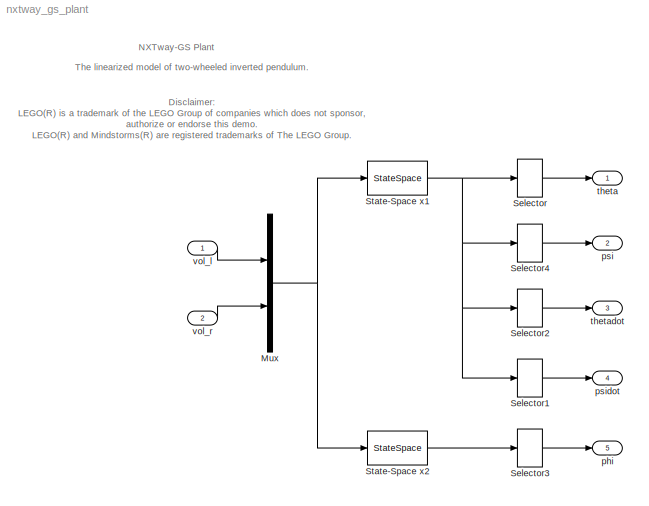
MODEL nxtway_gs_plant
KIND model
CONFIG PreLoadFcn = param_nxtway_gs
BLOCK [Mux] Mux
  DisplayOption = bar
  Inputs = 2
  Ports = [2, 1]
BLOCK [Selector] Selector
  IndexOptions = Index vector (dialog)
  Indices = 1
  InputPortWidth = 4
  OutputSizes = 1
  Ports = [1, 1]
BLOCK [Selector] Selector1
  IndexOptions = Index vector (dialog)
  Indices = 4
  InputPortWidth = 4
  OutputSizes = 1
  Ports = [1, 1]
BLOCK [Selector] Selector2
  IndexOptions = Index vector (dialog)
  Indices = 3
  InputPortWidth = 4
  OutputSizes = 1
  Ports = [1, 1]
BLOCK [Selector] Selector3
  IndexOptions = Index vector (dialog)
  Indices = 1
  InputPortWidth = 2
  OutputSizes = 1
  Ports = [1, 1]
BLOCK [Selector] Selector4
  IndexOptions = Index vector (dialog)
  Indices = 2
  InputPortWidth = 4
  OutputSizes = 1
  Ports = [1, 1]
BLOCK [StateSpace] State-Space x1
  A = A1
  B = B1
  C = C1
  D = D1
  X0 = X1IV
BLOCK [StateSpace] State-Space x2
  A = A2
  B = B2
  C = C2
  D = D2
  X0 = X2IV
BLOCK [Outport] phi
  IconDisplay = Port number
  OutDataType = sfix(16)
  OutScaling = 2^0
  Port = 5
BLOCK [Outport] psi
  IconDisplay = Port number
  OutDataType = sfix(16)
  OutScaling = 2^0
  Port = 2
BLOCK [Outport] psidot
  IconDisplay = Port number
  OutDataType = sfix(16)
  OutScaling = 2^0
  Port = 4
BLOCK [Outport] theta
  IconDisplay = Port number
  OutDataType = sfix(16)
  OutScaling = 2^0
BLOCK [Outport] thetadot
  IconDisplay = Port number
  OutDataType = sfix(16)
  OutScaling = 2^0
  Port = 3
BLOCK [Inport] vol_l
  DataType = double
  IconDisplay = Port number
  OutDataType = sfix(16)
  OutScaling = 2^0
BLOCK [Inport] vol_r
  DataType = double
  IconDisplay = Port number
  OutDataType = sfix(16)
  OutScaling = 2^0
  Port = 2
ANNOTATION (root): Disclaimer:\nLEGO(R) is a trademark of the LEGO Group of companies which does not sponsor,\nauthorize or endorse this demo.\nLEGO(R) and Mindstorms(R) are registered trademarks of The LEGO Group.
ANNOTATION (root): NXTway-GS Plant
ANNOTATION (root): The linearized model of two-wheeled inverted pendulum.
NET Mux:1 -> State-Space x1:1, State-Space x2:1
LINE Selector1:1 -> psidot:1
LINE Selector2:1 -> thetadot:1
LINE Selector3:1 -> phi:1
LINE Selector4:1 -> psi:1
LINE Selector:1 -> theta:1
NET State-Space x1:1 -> Selector1:1, Selector2:1, Selector4:1, Selector:1
LINE State-Space x2:1 -> Selector3:1
LINE vol_l:1 -> Mux:1
LINE vol_r:1 -> Mux:2
note: NET lines group one-source signal fan-out (src -> all destinations, sorted); 1:1 wires keep LINE
